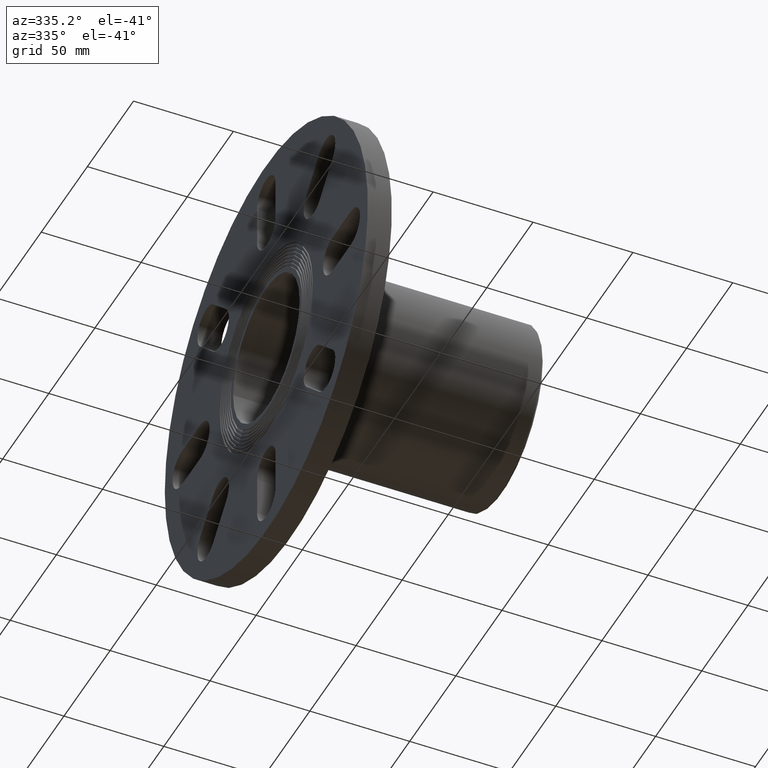
[diagram: clean part render]
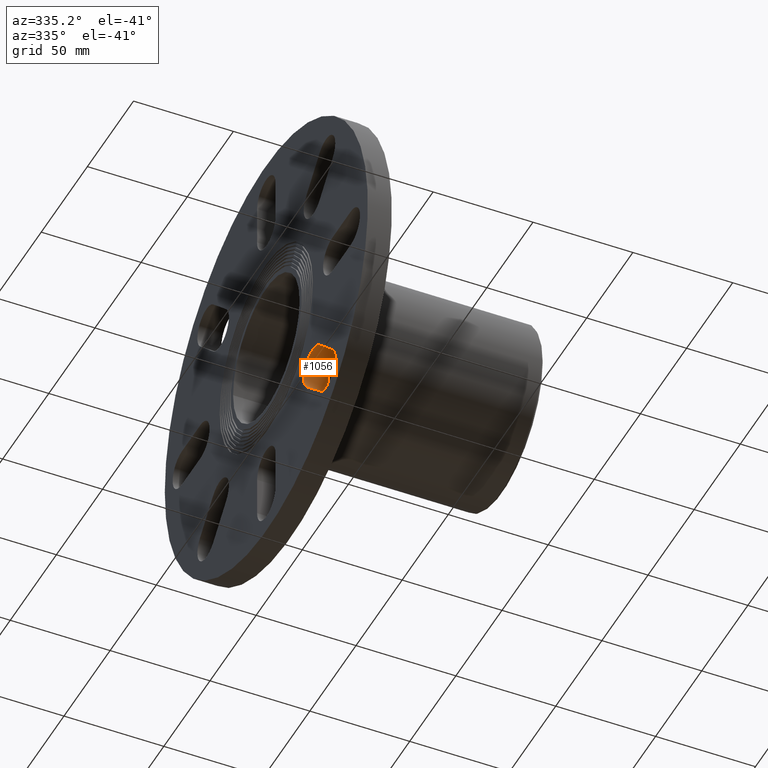
[diagram: same view with one face highlighted and labeled with its STEP entity id]
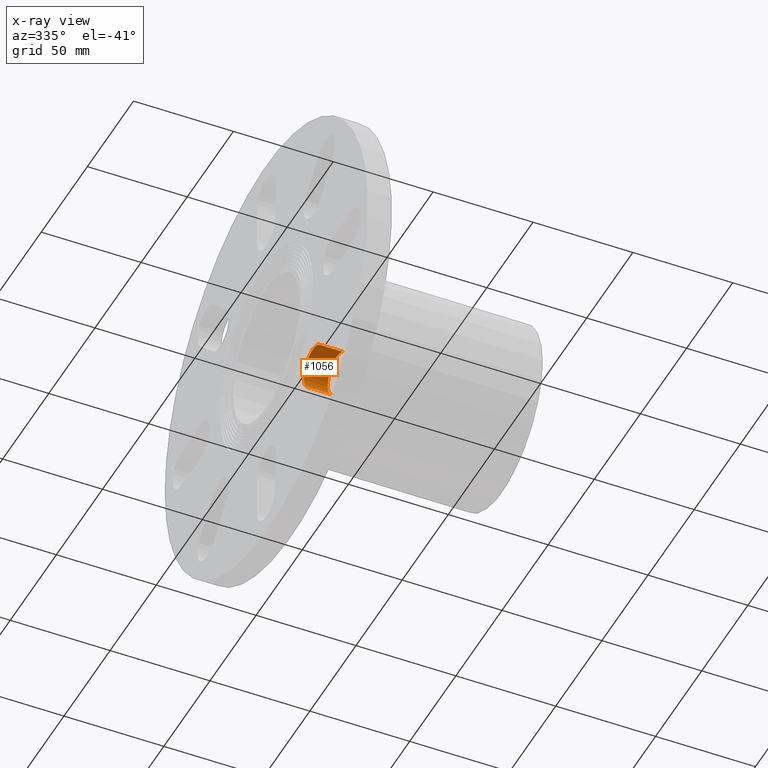
[diagram: x-ray of the same camera — body ghosted, the highlighted face saturated]
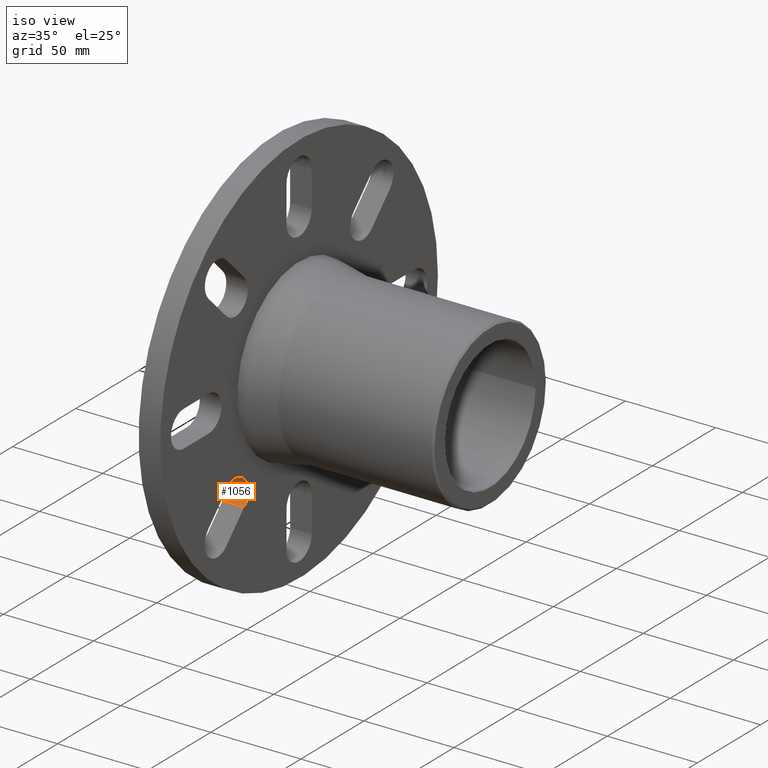
[diagram: same view with one face highlighted and labeled with its STEP entity id]
A machine part, auxiliary view. The second image highlights one B-rep face of the part: STEP entity #1056.
The next image is the same camera in x-ray: the body ghosted, the highlighted face saturated — about 0% of this face is hidden behind the body in this view.
A second angle (iso view) of the same face is appended — the face is thin or edge-on in the first view.
In plain terms, the highlighted cylindrical surface (edge-blend (fillet) strip) has radius 10 mm, axis along (1, -0, -0).
Its self-contained STEP definition (entity closure, byte-faithful):
#46=LINE('',#1762,#110);
#47=LINE('',#1766,#111);
#110=VECTOR('',#1444,12.);
#111=VECTOR('',#1449,12.);
#196=CYLINDRICAL_SURFACE('',#1180,10.);
#302=FACE_OUTER_BOUND('',#409,.T.);
#409=EDGE_LOOP('',(#883,#884,#885,#886));
#493=CIRCLE('',#1154,10.);
#503=CIRCLE('',#1181,10.);
#572=VERTEX_POINT('',#1694);
#573=VERTEX_POINT('',#1696);
#592=VERTEX_POINT('',#1760);
#593=VERTEX_POINT('',#1764);
#672=EDGE_CURVE('',#572,#573,#493,.T.);
#702=EDGE_CURVE('',#573,#592,#46,.T.);
#703=EDGE_CURVE('',#592,#593,#503,.T.);
#704=EDGE_CURVE('',#572,#593,#47,.T.);
#883=ORIENTED_EDGE('',*,*,#703,.F.);
#884=ORIENTED_EDGE('',*,*,#702,.F.);
#885=ORIENTED_EDGE('',*,*,#672,.F.);
#886=ORIENTED_EDGE('',*,*,#704,.T.);
#1056=ADVANCED_FACE('',(#302),#196,.F.);
#1154=AXIS2_PLACEMENT_3D('',#1697,#1372,#1373);
#1180=AXIS2_PLACEMENT_3D('',#1763,#1445,#1446);
#1181=AXIS2_PLACEMENT_3D('',#1765,#1447,#1448);
#1372=DIRECTION('center_axis',(1.,1.22464679914735E-16,0.));
#1373=DIRECTION('ref_axis',(0.,-0.707106781186547,0.707106781186548));
#1444=DIRECTION('',(1.,-7.09646309009616E-17,-7.09646309009616E-17));
#1445=DIRECTION('center_axis',(1.,-7.09646309009616E-17,-7.09646309009616E-17));
#1446=DIRECTION('ref_axis',(0.,-0.707106781186547,0.707106781186548));
#1447=DIRECTION('center_axis',(-1.,-1.22464679914735E-16,0.));
#1448=DIRECTION('ref_axis',(0.,-0.707106781186547,0.707106781186548));
#1449=DIRECTION('',(1.,-7.09646309009616E-17,-7.09646309009616E-17));
#1694=CARTESIAN_POINT('',(-118.,-43.4870670429727,-57.6292026667036));
#1696=CARTESIAN_POINT('',(-118.,-57.6292026667036,-43.4870670429727));
#1697=CARTESIAN_POINT('Origin',(-118.,-50.5581348548382,-50.5581348548381));
#1760=CARTESIAN_POINT('',(-106.,-57.6292026667036,-43.4870670429727));
#1762=CARTESIAN_POINT('',(-118.,-57.6292026667036,-43.4870670429727));
#1763=CARTESIAN_POINT('Origin',(-118.,-50.5581348548382,-50.5581348548381));
#1764=CARTESIAN_POINT('',(-106.,-43.4870670429727,-57.6292026667036));
#1765=CARTESIAN_POINT('Origin',(-106.,-50.5581348548382,-50.5581348548381));
#1766=CARTESIAN_POINT('',(-118.,-43.4870670429727,-57.6292026667036));